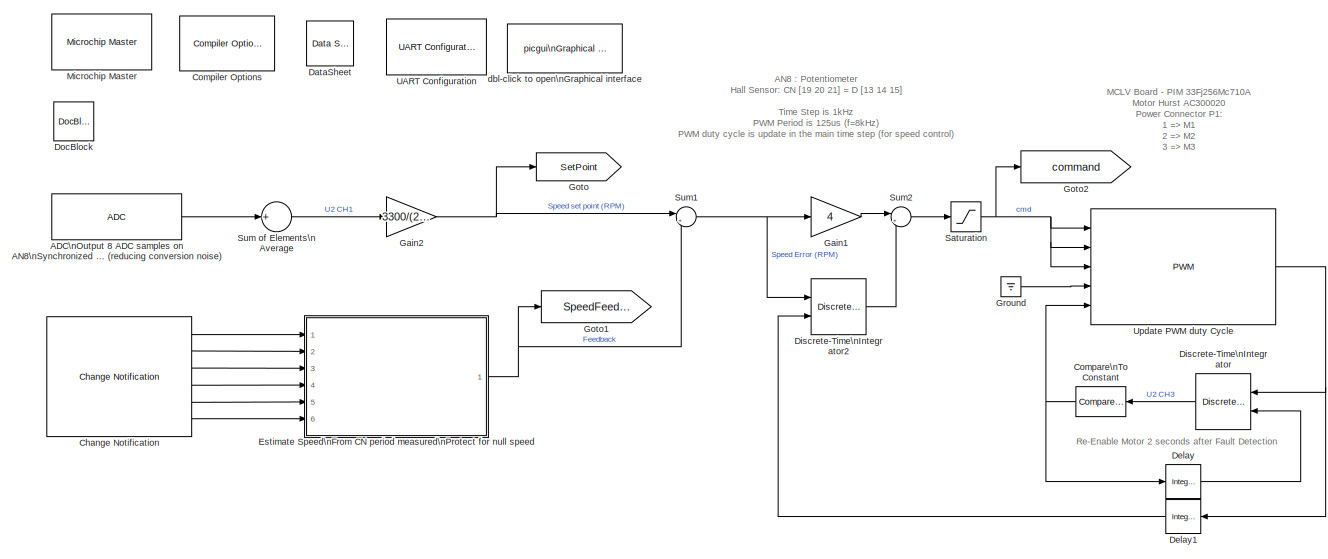
[diagram: root canvas - part 1/2, full width, top band]
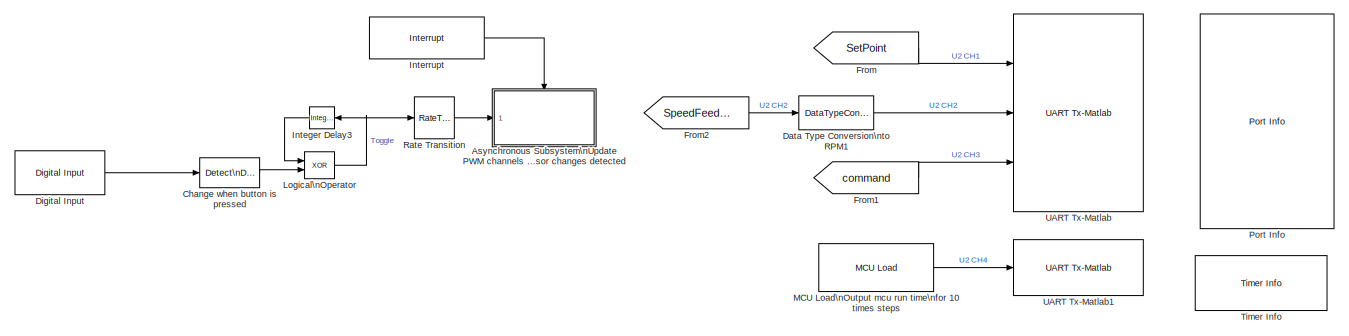
[diagram: root canvas - part 2/2, full width, bottom band]
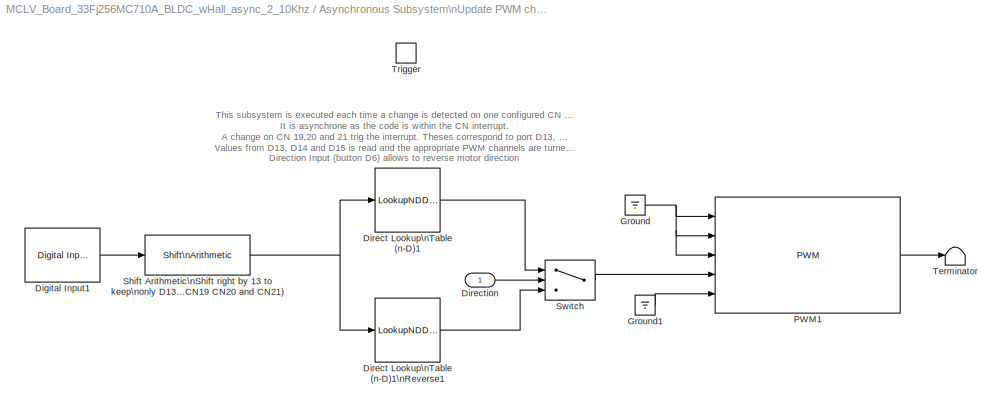
MODEL MCLV_Board_33Fj256MC710A_BLDC_wHall_async_2_10Khz
KIND model
BLOCK [Reference] ADC\nOutput 8 ADC samples on AN8\nSynchronized with PWM (reducing conversion noise)  REF=MCHP_Blockset/Analog IO/ADC
  ADC_DMA_CHANNEL = use DMA Channel 1
  ADC_REF = 1
  ADC_TIMING = [7.5599999999999994e-005]
  ADxCSS = 8
  FORM = 0000 dddd dddd dddd ==> Unsigned integer
  Info = Total Time for Sample & Conversion : 7.56e-005s including 0s (x 8) sample time.
  MCHP_MASTERLINK = MCLV_Board_33Fj256MC710A_BLDC_wHall_async_2_10Khz/Microchip Master
  MCHP_PORT = {Analog Input 8}{AN8}15:2:B8;
  MUXA_CH0N = off
  MUXA_CH123 = Dynamic Options
  MUXA_CH123_TXT = AN0 : AN1 : AN2
  MUXB_CH0 = AN1
  MUXB_CH0N = on
  MUXB_CH123 = Dynamic Options
  MUXB_CH123_TXT = AN0 : AN1 : AN2
  Mode = 12 bits
  Ports = [0, 1]
  SID = 2
  SIMULTANEOUS = in Sequence
  SSRC_SSRCG = Dynamic Options
  SSRC_SSRCG_TXT = 6
  SampleTime = 0.001
  SequenceRepeat = 8
  SequenceTiming = are done as fast as possible ; triggered by user define source
  SourceBlock = MCHP_Blockset/Analog IO/ADC
  Trig_TimeStep = with each update of the ADC block output
  Update_BlockOutput = After all trig and conversion sequence
  nSAMPLECHANNELS = CH0 only
  nSAMPLECHANNELS_12bits = CH0 only
BLOCK [SubSystem] Asynchronous Subsystem\nUpdate PWM channels to On // Off\nbased on Hall sensor changes detected
  FunctionWithSeparateData = off
  MaskHideContents = off
  MinAlgLoopOccurrences = off
  Opaque = off
  Ports = [1, 0, 0, 1]
  PropExecContextOutsideSubsystem = off
  RTWSystemCode = Auto
  RequestExecContextInheritance = off
  SID = 56
BLOCK [Reference] Asynchronous Subsystem\nUpdate PWM channels to On // Off\nbased on Hall sensor changes detected/Digital Input1  REF=MCHP_Blockset/Digital IO/Digital Input
  MCHP_MASTERLINK = MCLV_Board_33Fj256MC710A_BLDC_wHall_async_2_10Khz/Microchip Master
  MCHP_PORT = {Digital In}{DIN}2:0:D13;{Digital In}{DIN}2:0:D14;{Digital In}{DIN}2:0:D15;
  ORDERING = None
  PACK = on
  PIN = [13 14 15]
  PORT = Dynamic Options
  PORT_TXT = D   [ 0 : 15 ]
  Ports = [0, 1]
  SID = 65
  SIMULTANEOUS = off
  SampleTime = -1
  SourceBlock = MCHP_Blockset/Digital IO/Digital Input
  SourceType = Input driver for Digital Input Pins
BLOCK [LookupNDDirect] Asynchronous Subsystem\nUpdate PWM channels to On // Off\nbased on Hall sensor changes detected/Direct Lookup\nTable (n-D)1
  NumberOfTableDimensions = 1
  Ports = [1, 1]
  SID = 6
  Table = [0 8193 516 8196 2064 2049 528 0]
  TableDataTypeStr = uint16
BLOCK [LookupNDDirect] Asynchronous Subsystem\nUpdate PWM channels to On // Off\nbased on Hall sensor changes detected/Direct Lookup\nTable (n-D)1\nReverse1
  NumberOfTableDimensions = 1
  Ports = [1, 1]
  SID = 7
  Table = [0 528 2049 2064 8196 516 8193 0]
  TableDataTypeStr = uint16
BLOCK [Inport] Asynchronous Subsystem\nUpdate PWM channels to On // Off\nbased on Hall sensor changes detected/Direction
  IconDisplay = Port number
  SID = 68
BLOCK [Ground] Asynchronous Subsystem\nUpdate PWM channels to On // Off\nbased on Hall sensor changes detected/Ground
  SID = 86
BLOCK [Ground] Asynchronous Subsystem\nUpdate PWM channels to On // Off\nbased on Hall sensor changes detected/Ground1
  SID = 87
BLOCK [Reference] Asynchronous Subsystem\nUpdate PWM channels to On // Off\nbased on Hall sensor changes detected/PWM1  REF=MCHP_Blockset/PWM IO/PWM
  CAM = off
  Channel = [1  2 3]
  ChannelHigh = [1 2 4]
  ChannelHighLowChk = off
  DTPWM1a = Prescaler A
  DTPWM1i = Prescaler A
  DTPWM2a = Prescaler A
  DTPWM2i = Prescaler A
  DTPWM3a = Prescaler A
  DTPWM3i = Prescaler A
  DTPWM4a = Prescaler A
  DTPWM4i = Prescaler A
  DeadTimePrescaleA = 2e-6
  DeadTimePrescaleB = 0
  FAULTA_FLATM = Use Re-Enable block input after Fault is detected
  FAULTB_FLBTM = Use Re-Enable block input after Fault is detected
  FaultA_Output = on
  FaultA_PWM1_State = H/L ==> 00
  FaultA_PWM2_State = H/L ==> 00
  FaultA_PWM3_State = H/L ==> 00
  FaultA_PWM4_State = No Changes (PWM)
  FaultB_Output = off
  FaultB_PWM1_State = No Changes (PWM)
  FaultB_PWM2_State = No Changes (PWM)
  FaultB_PWM3_State = No Changes (PWM)
  FaultB_PWM4_State = No Changes (PWM)
  IUE = off
  Info = PWM1max = 9997  ;   % ==>  13.2873 bits
  InitialPeriod = .001/8
  InputPeriodeChk = off
  MCHP_MASTERLINK = MCLV_Board_33Fj256MC710A_BLDC_wHall_async_2_10Khz/Microchip Master
  OVDCONChk = on
  PIN_FaultA = Dynamic Options
  PIN_FaultA_TXT = <empty>
  PIN_FaultB = Dynamic Options
  PIN_FaultB_TXT = <empty>
  PWM_REF = Duplicate ports for PWM 1
  Ports = [5, 1]
  PxSECMP = 0
  PxSECMPBlkInChk = off
  SID = 71
  SampleTime = -1
  SourceBlock = MCHP_Blockset/PWM IO/PWM
  SourceType = PWM Motor Output
BLOCK [Reference] Asynchronous Subsystem\nUpdate PWM channels to On // Off\nbased on Hall sensor changes detected/Shift Arithmetic\nShift right by 13 to keep\nonly D13 D14 D15\n(CN19 CN20 and CN21)  REF=simulink/Logic and Bit\nOperations/Shift\nArithmetic
  FunctionWithSeparateData = off
  Ports = [1, 1]
  RTWMemSecDataConstants = Inherit from model
  RTWMemSecDataInternal = Inherit from model
  RTWMemSecDataParameters = Inherit from model
  RTWMemSecFuncExecute = Inherit from model
  RTWMemSecFuncInitTerm = Inherit from model
  SID = 199
  ShowPortLabels = FromPortIcon
  SourceBlock = simulink/Logic and Bit\nOperations/Shift\nArithmetic
  SourceType = Shift Arithmetic
  SystemSampleTime = -1
  nBinPtShiftRight = 0
  nBitShiftRight = 13
BLOCK [Switch] Asynchronous Subsystem\nUpdate PWM channels to On // Off\nbased on Hall sensor changes detected/Switch
  Criteria = u2 ~= 0
  InputSameDT = off
  SID = 11
  SaturateOnIntegerOverflow = off
BLOCK [Terminator] Asynchronous Subsystem\nUpdate PWM channels to On // Off\nbased on Hall sensor changes detected/Terminator
  SID = 88
BLOCK [TriggerPort] Asynchronous Subsystem\nUpdate PWM channels to On // Off\nbased on Hall sensor changes detected/Trigger
  PortDimensions = 1
  Ports = []
  SID = 63
  StatesWhenEnabling = held
  TriggerType = function-call
BLOCK [Reference] Change Notification  REF=MCHP_Blockset/Pulse Input//Output/Change Notification
  CNxmax = [39062  39062  39062]
  ChangeDetected = [1     1     1]
  Channel = [19    20    21]
  Channel_EP = [  D13  D14  D15 ]
  Channel_OLD = [19  20  21]
  Channel_UP_Down_Periode = [4     4     4]
  IntPriority = 6
  MCHP_MASTERLINK = MCLV_Board_33Fj256MC710A_BLDC_wHall_async_2_10Khz/Microchip Master
  MCHP_PORT = {Change Notification 19}{CN19}9:0:D13;{Change Notification 20}{CN20}9:0:D14;{Change Notification 21}{CN21}9:0:D15;
  MCHP_TIMER_REQUEST = {Change Notification 19}{CN19}7:1:1:0:[]:30000000;{Change Notification 20}{CN20}7:1:1:0:[]:30000000;{Change Notification 21}{CN21}7:1:1:0:[]:30000000;
  MCHP_TIMER_RESULT = [2 117186.50000000007 ;2 117186.50000000007 ;2 117186.50000000007 ]
  MCHP_USER_INTERRUPTS = {CNIE}{CN}{Change Notification}{6};
  MaxChannel = [0.25   0.25   0.25]
  MaxChannelValue = 2.^[ 15.253  15.253  15.253]  =>  [39062  39062  39062]
  OutputPortValue = [0     0     0]
  Ports = [0, 6]
  SID = 47
  SafeMarge = [200   200   200]
  SampleTime = .001
  SourceBlock = MCHP_Blockset/Pulse Input//Output/Change Notification
  SourceType = Input driver for Change Notification Peripheral
  Status = OK
  Timer = [2  2  2]
BLOCK [Reference] Change when button is pressed  REF=simulink/Logic and Bit\nOperations/Detect\nDecrease
  FunctionWithSeparateData = off
  Ports = [1, 1]
  RTWMemSecDataConstants = Inherit from model
  RTWMemSecDataInternal = Inherit from model
  RTWMemSecDataParameters = Inherit from model
  RTWMemSecFuncExecute = Inherit from model
  RTWMemSecFuncInitTerm = Inherit from model
  SID = 69
  ShowPortLabels = FromPortIcon
  SourceBlock = simulink/Logic and Bit\nOperations/Detect\nDecrease
  SourceType = Detect Decrease
  SystemSampleTime = -1
  vinit = 0.0
BLOCK [Reference] Compare\nTo Constant  REF=simulink/Logic and Bit\nOperations/Compare\nTo Constant
  FunctionWithSeparateData = off
  LogicOutDataTypeMode = boolean
  Ports = [1, 1]
  RTWMemSecDataConstants = Inherit from model
  RTWMemSecDataInternal = Inherit from model
  RTWMemSecDataParameters = Inherit from model
  RTWMemSecFuncExecute = Inherit from model
  RTWMemSecFuncInitTerm = Inherit from model
  SID = 27
  ShowPortLabels = FromPortIcon
  SourceBlock = simulink/Logic and Bit\nOperations/Compare\nTo Constant
  SourceType = Compare To Constant
  SystemSampleTime = -1
  ZeroCross = on
  const = 2000
  relop = >=
BLOCK [Reference] Compiler Options  REF=MCHP_Blockset/System Configuration/Compiler Options
  AssemblyListing = off
  COMP_LIST = Dynamic Options
  COMP_LIST_TXT = xc16 - v1.26
  DEBUG_INFO = on
  HEAP_SIZE = 0
  LATEST_CMPLR = on
  MCHP_MASTERLINK = MCLV_Board_33Fj256MC710A_BLDC_wHall_async_2_10Khz/Microchip Master
  MCHP_MULTITHREAD_COMPILATION = on
  MCODE = is less than 32768 (faster)
  MCONST = in data memory
  MDATA = Use only memory below address 8192 (faster)
  MPLAB_LINKLIB = default
  MPLAB_LINKLIB1 = default
  MSCALAR = Use only memory below address 8192 (faster)
  OMF = elf
  OMIT_FRAME_POINTER = off
  OPTIMIZATION_LEVEL = 3
  PROCEDURAL_ABSTRACTION = off
  Ports = []
  Priority = 1
  ProduceHexOutput = on
  SID = 67
  SourceBlock = MCHP_Blockset/System Configuration/Compiler Options
  UNROLL_LOOPS = off
  USE_64BIT_DOUBLE = off
BLOCK [DataTypeConversion] Data Type Conversion\nto RPM1
  OutDataTypeMode = uint16
  OutDataTypeStr = uint16
  RndMeth = Floor
  SID = 195
BLOCK [Reference] DataSheet  REF=MCHP_Blockset/System Info/Data Sheet
  AttributesFormatString = %<cpy_MCHP_Id>
  DOC_FileLastCheckTime = [2012              9              2             21             45         49.233]
  DOC_FilePath = <userpath><path>
  DOC_MCHP_Id = 33FJ256MC710A
  DOC_Type = datasheet
  MCHP_MASTERLINK = MCLV_Board_33Fj256MC710A_BLDC_wHall_async_2_10Khz/Microchip Master
  Ports = []
  SID = 35
  SourceBlock = MCHP_Blockset/System Info/Data Sheet
  cpy_MCHP_Id = 33FJ256MC710A
BLOCK [Reference] Delay  REF=simulink/Discrete/Integer Delay
  NumDelays = 1
  Ports = [1, 1]
  SID = 200
  SourceBlock = simulink/Discrete/Integer Delay
  SourceType = Integer Delay
  samptime = -1
  vinit = 0
BLOCK [Reference] Delay1  REF=simulink/Discrete/Integer Delay
  NumDelays = 1
  Ports = [1, 1]
  SID = 201
  SourceBlock = simulink/Discrete/Integer Delay
  SourceType = Integer Delay
  samptime = -1
  vinit = 0
BLOCK [Reference] Digital Input  REF=MCHP_Blockset/Digital IO/Digital Input
  MCHP_MASTERLINK = MCLV_Board_33Fj256MC710A_BLDC_wHall_async_2_10Khz/Microchip Master
  MCHP_PORT = {Digital In}{DIN}2:0:D6;
  ORDERING = None
  PACK = off
  PIN = 6
  PORT = Dynamic Options
  PORT_TXT = D   [ 0 : 15 ]
  Ports = [0, 1]
  SID = 34
  SIMULTANEOUS = off
  SampleTime = .01
  SourceBlock = MCHP_Blockset/Digital IO/Digital Input
  SourceType = Input driver for Digital Input Pins
BLOCK [DiscreteIntegrator] Discrete-Time\nIntegrator
  ExternalReset = level
  ICPrevOutput = DiscIntNeverNeededParam
  ICPrevScaledInput = DiscIntNeverNeededParam
  InitialConditionSource = internal
  IntegratorMethod = Accumulation: Forward Euler
  LowerSaturationLimit = 0
  OutDataTypeMode = uint16
  OutDataTypeStr = uint16
  Ports = [2, 1]
  SID = 29
  SampleTime = -1
  SaturateOnIntegerOverflow = on
  UpperSaturationLimit = 0
  gainval = 1
BLOCK [DiscreteIntegrator] Discrete-Time\nIntegrator2
  ExternalReset = level
  ICPrevOutput = DiscIntNeverNeededParam
  ICPrevScaledInput = DiscIntNeverNeededParam
  InitialConditionSource = internal
  IntegratorMethod = Integration: Forward Euler
  LimitOutput = on
  LowerSaturationLimit = 0
  OutDataType = fixdt(1,16,1)
  OutDataTypeMode = Specify via dialog
  OutDataTypeStr = fixdt(1,16,1)
  OutMax = [PWMmax]
  OutMin = [-PWMmax]
  Ports = [2, 1]
  SID = 97
  SampleTime = -1
  SaturateOnIntegerOverflow = on
  UpperSaturationLimit = PWM1max
  gainval = 16
BLOCK [Reference] DocBlock  REF=simulink/Model-Wide\nUtilities/DocBlock
  DocumentType = Text
  FunctionWithSeparateData = off
  Ports = []
  RTWMemSecDataConstants = Inherit from model
  RTWMemSecDataInternal = Inherit from model
  RTWMemSecDataParameters = Inherit from model
  RTWMemSecFuncExecute = Inherit from model
  RTWMemSecFuncInitTerm = Inherit from model
  SID = 169
  ShowPortLabels = FromPortIcon
  SourceBlock = simulink/Model-Wide\nUtilities/DocBlock
  SourceType = DocBlock
  SystemSampleTime = -1
  UserData = DataTag0
  UserDataPersistent = on
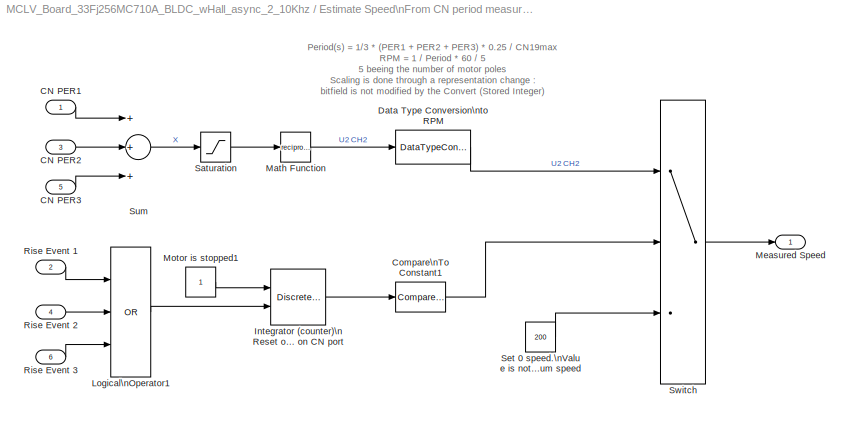
BLOCK [SubSystem] Estimate Speed\nFrom CN period measured\nProtect for null speed
  FunctionWithSeparateData = off
  MaskHideContents = off
  MinAlgLoopOccurrences = off
  Opaque = off
  Ports = [6, 1]
  PropExecContextOutsideSubsystem = off
  RTWSystemCode = Auto
  RequestExecContextInheritance = off
  SID = 153
BLOCK [Inport] Estimate Speed\nFrom CN period measured\nProtect for null speed/CN PER1
  IconDisplay = Port number
  SID = 154
BLOCK [Inport] Estimate Speed\nFrom CN period measured\nProtect for null speed/CN PER2
  IconDisplay = Port number
  Port = 3
  SID = 155
BLOCK [Inport] Estimate Speed\nFrom CN period measured\nProtect for null speed/CN PER3
  IconDisplay = Port number
  Port = 5
  SID = 156
BLOCK [Reference] Estimate Speed\nFrom CN period measured\nProtect for null speed/Compare\nTo Constant1  REF=simulink/Logic and Bit\nOperations/Compare\nTo Constant
  FunctionWithSeparateData = off
  LogicOutDataTypeMode = boolean
  Ports = [1, 1]
  RTWMemSecDataConstants = Inherit from model
  RTWMemSecDataInternal = Inherit from model
  RTWMemSecDataParameters = Inherit from model
  RTWMemSecFuncExecute = Inherit from model
  RTWMemSecFuncInitTerm = Inherit from model
  SID = 127
  ShowPortLabels = FromPortIcon
  SourceBlock = simulink/Logic and Bit\nOperations/Compare\nTo Constant
  SourceType = Compare To Constant
  SystemSampleTime = -1
  ZeroCross = on
  const = 250
  relop = <=
BLOCK [DataTypeConversion] Estimate Speed\nFrom CN period measured\nProtect for null speed/Data Type Conversion\nto RPM
  ConvertRealWorld = Stored Integer (SI)
  OutDataType = fixdt(1,16,CN19max/0.25 * 3/5 * 60 * 2^-23,0)
  OutDataTypeMode = Specify via dialog
  OutDataTypeStr = fixdt(1,16,CN19max/0.25 * 3/5 * 60 * 2^-23,0)
  RndMeth = Floor
  SID = 93
  SaturateOnIntegerOverflow = off
BLOCK [DiscreteIntegrator] Estimate Speed\nFrom CN period measured\nProtect for null speed/Integrator (counter)\nReset on each rise edge\ndetected on CN port
  ExternalReset = level
  ICPrevOutput = DiscIntNeverNeededParam
  ICPrevScaledInput = DiscIntNeverNeededParam
  InitialConditionSource = internal
  IntegratorMethod = Accumulation: Forward Euler
  LimitOutput = on
  LowerSaturationLimit = 0
  OutDataTypeMode = uint16
  OutDataTypeStr = uint16
  Ports = [2, 1]
  SID = 112
  SampleTime = -1
  SaturateOnIntegerOverflow = on
  UpperSaturationLimit = 255
  gainval = 1
BLOCK [Logic] Estimate Speed\nFrom CN period measured\nProtect for null speed/Logical\nOperator1
  AllPortsSameDT = off
  Inputs = 3
  Operator = OR
  OutDataTypeMode = boolean
  OutDataTypeStr = boolean
  Ports = [3, 1]
  SID = 111
BLOCK [Math] Estimate Speed\nFrom CN period measured\nProtect for null speed/Math Function
  Operator = reciprocal
  OutDataType = fixdt(0,16,23)
  OutDataTypeMode = Specify via dialog
  OutDataTypeStr = fixdt(0,16,23)
  OutputSignalType = real
  Ports = [1, 1]
  SID = 91
BLOCK [Outport] Estimate Speed\nFrom CN period measured\nProtect for null speed/Measured Speed
  IconDisplay = Port number
  SID = 157
BLOCK [Constant] Estimate Speed\nFrom CN period measured\nProtect for null speed/Motor is stopped1
  OutDataTypeMode = Inherit via back propagation
  OutDataTypeStr = Inherit: Inherit via back propagation
  SID = 113
BLOCK [Inport] Estimate Speed\nFrom CN period measured\nProtect for null speed/Rise Event 1
  IconDisplay = Port number
  Port = 2
  SID = 158
BLOCK [Inport] Estimate Speed\nFrom CN period measured\nProtect for null speed/Rise Event 2
  IconDisplay = Port number
  Port = 4
  SID = 159
BLOCK [Inport] Estimate Speed\nFrom CN period measured\nProtect for null speed/Rise Event 3
  IconDisplay = Port number
  Port = 6
  SID = 160
BLOCK [Saturate] Estimate Speed\nFrom CN period measured\nProtect for null speed/Saturation
  LowerLimit = 1
  OutDataTypeMode = uint16
  OutDataTypeStr = uint16
  Ports = [1, 1]
  SID = 101
  UpperLimit = 65535
BLOCK [Constant] Estimate Speed\nFrom CN period measured\nProtect for null speed/Set 0 speed.\nValue is not 0, thus\nIf set point (from ADC) is lower than this low value,\nThe controller will drive PWM to 0.\nThis value set the minimum speed
  OutDataTypeMode = Inherit via back propagation
  OutDataTypeStr = Inherit: Inherit via back propagation
  SID = 110
  Value = 200
BLOCK [Sum] Estimate Speed\nFrom CN period measured\nProtect for null speed/Sum
  AccumDataTypeStr = Inherit: Same as first input
  InputSameDT = off
  Inputs = +++
  Ports = [3, 1]
  RndMeth = Simplest
  SID = 64
BLOCK [Switch] Estimate Speed\nFrom CN period measured\nProtect for null speed/Switch
  Criteria = u2 ~= 0
  InputSameDT = off
  SID = 109
  SaturateOnIntegerOverflow = off
BLOCK [From] From
  GotoTag = SetPoint
  SID = 161
BLOCK [From] From1
  GotoTag = command
  SID = 165
BLOCK [From] From2
  GotoTag = SpeedFeedback
  SID = 166
BLOCK [Gain] Gain1
  Gain = 4
  OutDataTypeMode = int16
  OutDataTypeStr = int16
  ParamDataTypeStr = fixdt(1,16,10)
  ParameterDataType = fixdt(1,16,10)
  ParameterDataTypeMode = Specify via dialog
  ParameterScalingMode = Best Precision: Matrix-wise
  RndMeth = Round
  SID = 98
BLOCK [Gain] Gain2
  Gain = 3300/(2^12*8)
  OutDataTypeMode = uint16
  OutDataTypeStr = uint16
  ParamDataTypeStr = Inherit: Inherit from 'Gain'
  ParameterDataTypeMode = Inherit from 'Gain'
  RndMeth = Round
  SID = 124
BLOCK [Goto] Goto
  GotoTag = SetPoint
  SID = 162
  TagVisibility = local
BLOCK [Goto] Goto1
  GotoTag = SpeedFeedback
  SID = 163
  TagVisibility = local
BLOCK [Goto] Goto2
  GotoTag = command
  SID = 164
  TagVisibility = local
BLOCK [Ground] Ground
  SID = 85
BLOCK [Reference] Integer Delay3  REF=simulink/Discrete/Integer Delay
  NumDelays = 1
  Ports = [1, 1]
  SID = 202
  SourceBlock = simulink/Discrete/Integer Delay
  SourceType = Integer Delay
  samptime = -1
  vinit = 1
BLOCK [Reference] Interrupt  REF=MCHP_Blockset/System Functions/Interrupt
  IntPriority = 6
  Interruption = Dynamic Options
  Interruption_TXT = Change Notification
  MCHP_MASTERLINK = MCLV_Board_33Fj256MC710A_BLDC_wHall_async_2_10Khz/Microchip Master
  Ports = [0, 1]
  SID = 62
  SourceBlock = MCHP_Blockset/System Functions/Interrupt
  SourceType = Interruption (Call Simulink Subfunction)
  StartupExecute = off
  Status = OK
BLOCK [Logic] Logical\nOperator
  AllPortsSameDT = off
  Operator = XOR
  OutDataTypeMode = boolean
  OutDataTypeStr = boolean
  Ports = [2, 1]
  SID = 16
BLOCK [Reference] MCU Load\nOutput mcu run time\nfor 10 times steps  REF=MCHP_Blockset/Profiling/MCU Load
  Info = Timer 1:  Resol: 200(ns)  -  Max: 13.1072(ms)
  MCHP_COMPILED_INFO = CompiledSampleTime= [0.01   0 ];CompiledInportDataTypes=[ ];CompiledInportDataWidth=[];
  MCHP_MASTERLINK = MCLV_Board_33Fj256MC710A_BLDC_wHall_async_2_10Khz/Microchip Master
  MCHP_PORT = {MCU Load Pin}{MCU_Load}0:1:F13;
  MCHP_TIMER_REQUEST = {MCU_Load}{MCU_Load}21:5:0:0:[]:524288;
  MCHP_TIMER_RESULT = [1 65535 ]
  MCULoadMeasure = on
  MCULoadPin = Dynamic Options
  MCULoadPin_TXT = F13 / Pin[39]
  Ports = [0, 1]
  SID = 151
  SampleTime = .01
  SourceBlock = MCHP_Blockset/Profiling/MCU Load
  SourceType = MCU Load (Profile execution time)
  TIMER_Resolution = Dynamic Options
  TIMER_Resolution_TXT = Resol: 0.2(us)  -  Max: 13.1(ms)
BLOCK [Reference] Microchip Master  REF=MCHP_Blockset/System Configuration/Microchip Master
  ACTIV_PLL = on
  ACTIV_PLL_spd = on
  AIVTDIS = Disable Alternate Vector Table
  ALTADREF = AVREF+/AVREF- are mapped to RA9/RA10
  ALTCMPI = C1INC is on RB13; C2INC is on RB9 and C3INC is on RA0
  ALTCVREF = CVREF+/CVREF- are mapped to RA9/RA10
  ALTI2C = I2C mapped to SDA1/SCL1 pins
  ALTI2C1 = I2C1 mapped to SDA1/SCL1 pins
  ALTI2C2 = I2C2 mapped to SDA2/SCL2 pins
  ALTPMP = EPMP pins are in default location mode
  ALTQIO = QEA1; QEB1; INDX1 are selected as inputs to QEI1
  ALTRB6 = Append the RP6/ASCL1/PMPD6 functions of RB6 to RA1 pin functions
  ALTSS1 = SS1A is selected as the I/O pin for SPI1
  ALTVREF = Voltage reference input; ADC =RA9/RA10 Comparator =RA9;RA10
  APL = Aux Flash Code protect is disabled
  APLK = Aux Flash Write Protection or Code Protection is Enabled
  ATMOD8 = Not used
  AWRP = Aux Flash may be written
  BACKBUG = Not used
  BKBUG = Device resets into Operational mode
  BODENV = 2.7V
  BOOTISA = Boot code and Exception code is MIPS32
  BOREN = Disable
  BOREN0 = Enabled
  BOREN1 = BOR Enabled [When BOREN=1]
  BORV = Brown-out Reset set at 2.0V
  BSEN = No Boot Segment
  BSLIM = Not used
  BSS = No boot program Flash segment
  BSS2 = No Boot Segment
  BTMODE = Device is in Single Boot (legacy) mode
  BTSWP = Not used
  BUSYFLAG = Dynamic Options
  BUSYFLAG_TXT = None
  BWP = Protection Disabled
  BWRP = Boot Segment may be written
  CMPPOL0 = Hysteresis is applied to falling edge
  CMPPOL1 = Hysteresis is applied to falling edge
  COE = Reset Into Operational Mode
  CP = Protection Disabled
  CSEQ = Not used
  CSS = No Protection (other than CWRP)
  CTXT1 = Not Assigned
  CTXT2 = Not Assigned
  CWRP = Configuration Segment may be written
  DBCC = Not used
  DBGPER = Allow CPU access to all permission regions
  DEBUG = Debugger is disabled
  DFMCY = Not used
  DISUVREG = Regulator is disabled
  DMTCNT = 2^31 (2147483648)
  DMTEN = Dead Man Timer is Enabled and cannot be disabled by software
  DMTINTV = Window/Interval value is 127/128 counter value
  DMTIVT = Not used
  DSBOREN = Deep Sleep BOR enabled in Deep Sleep
  DSLPBOR = Deep Sleep BOR enabled in Deep Sleep
  DSSWEN = Deep Sleep is controlled by the register bit DSEN
  DSWDTEN = DSWDT enabled
  DSWDTOSC = DSWDT uses Low Power RC Oscillator (LPRC)
  DSWDTPS = 1:2;147;483;648 (25.7 Days)
  EBS = No Boot EEPROM
  EJTAGBEN = Normal EJTAG functionality
  ESS = No Segment Data EEPROM
  EXTDDRSIZE = External DDR2 Size is 128 MB
  FCANIO = Default CAN I/O
  FCKSM = Clock switching is enabled; Fail-Safe Clock Monitor is disabled
  FCKSMEN = Sw Disabled; Mon Disabled
  FDMTEN = Deadman Timer is disabled
  FECCCON = ECC and Dynamic ECC are disabled (ECCCON bits are writable)
  FETHIO = Default Ethernet I/O
  FMIIEN = MII Enabled
  FNOSC = Primary oscillator (XT; HS; EC)
  FOS = Primary Oscillator
  FOSFPR = HS3 w/PLL 16x
  FPBDIV = Pb_Clk is Sys_Clk/8
  FPLLICLK = FRC is input to the System PLL
  FPLLIDIV = 12x Divider
  FPLLMUL = 24x Multiplier
  FPLLMULT = PLL Multiply by 128
  FPLLODIV = PLL Divide by 256
  FPLLRNG = 34-68 MHz Input
  FPR = ECIO w/ PLL 16x
  FPWRT = 128ms
  FRANGE = High Range
  FSLEEP = Flash is powered down when the device is in Sleep mode
  FSOSCEN = Enabled
  FSRSSEL = SRS Priority 7
  FUSBIDIO = Controlled by the USB Module
  FVBUSONIO = Controlled by USB Module
  FWDTEN = Disable
  FWDTWINSZ = Window size is 25%
  FWPSA = 1:512
  FWPSA0 = 1:128
  FWPSB = 1:16
  GCP = General Segment Code protect is disabled
  GSS = User program memory is not code-protected
  GSS0 = No protection
  GSSK = General Segment Write Protection or Code Protection is Enabled
  GWRP = General Segment may be written
  HPOL = PWM module high side output pins have active-high output polarity
  HYST0 = 45 mV Hysteresis
  HYST1 = 45 mV Hysteresis
  I2C1SEL = Use Default SCL1/SDA1 Pins For I2C1
  I2C2SEL = I2C2 is multiplexed to SDA2/RA3 and SCL2/RA2
  ICESEL = Communicate on PGEC1/PGED1
  ICS = Communicate on PGEC1 and PGED1
  IESO = Start up with FRC; then switch
  IOL1WAY = Allow only one reconfiguration
  JTAGEN = Disable
  LPCFG = Disabled - regardless of RETEN
  LPOL = Active High
  LPRCSEL = High Power; High Accuracy Mode
  LVRCFG = Low Voltage regulator is not available
  MCHPVAR = MCHP.fcy.periph=40000000;MCHP.fcy.MIPS=40000000;MCHP.PowerSave=0;MCHP.TimeStepFactor=-1000;MCHP.TimeStep_Timer=-1;MCHP.NTIMERS=9;MCHP.id.name='33FJ256MC710A';MCHP.id.N=reshape([33 256 710],1,3);MCHP.id.L=reshape({ 'FJ','MC','A'},1,3);MCHP.id.Arch=3;MCHP.periph.PPS.reg_RPINRx=reshape(MCHP_Fun.Hex2num('[]'),0,0);MCHP.PPS.dsPIC.RP=reshape(MCHP_Fun.Hex2num('[]'),0,0);MCHP.PPS.dsPIC.RPI=reshape(MCHP_Fu...<+4983ch>
  MCHP_CRC = 4181521
  MCHP_PLLRegisters = [5    138  16385     -1]
  MCHP_TIMER_RESULT = [ ]
  MCLRE = Enabled
  MIPS = 40 * 1e6
  MIPS_DESIRED = 40e6
  MIPS_DESIRED_spd = 40e6
  ON = Not used
  OSCILLATOR_SELECT = Crystal / Ceramic resonator
  OSCILLATOR_SELECT_spd = Crystal / Ceramic resonator
  OSCIOFCN = OSCO/CLKO/RA3 functions as CLKO (FOSC/2)
  OSCIOFNC = OSC2 pin has digital I/O function
  PGL1WAY = Allow only one reconfiguration
  PICREF = 33FJ256MC710A
  PLL96MHZ = 96 MHz PLL Startup is enabled automatically on start-up
  PLLDIV = PLL is disabled
  PLLKEN = Clock switch to PLL source will wait until the PLL lock signal is valid.
  PLLSS = PLL is fed by the Primary oscillator
  PLL_96MHZ = Enabled
  PMDL1WAY = Allow only one reconfiguration
  POSCBOOST = Boost the kick start of the oscillator
  POSCFREQ = Primary oscillator/external clock input frequency greater than 8MHz
  POSCGAIN = 2x gain setting
  POSCMD = XT Oscillator Mode
  POSCMOD = Primary Oscillator Disabled
  POWERSAVE = off
  PWMLOCK = PWM registers may be written without key sequence
  PWMPIN = PWM module pins controlled by PWM module at device Reset
  PWP = Disable
  PWRTEN = PWRT enabled
  Ports = []
  QUARTZ = 8e6
  QUARTZ_spd = 8e6
  RBS = No Boot RAM
  RES = Not used
  RES1 = Not used
  RES2 = Not used
  RESERVED1 = Not used
  RETCFG = Retention regulator is not available
  RSS = No Secure RAM
  RSTPRI = Device will obtain reset instruction from Primary flash
  RTCBAT = RTC operation is continued through VBAT
  RTCOSC = RTCC uses Secondary Oscillator (SOSC)
  SEQNUM = Not used
  SID = 1
  SMCLR = MCLR pin generates a normal system Reset
  SOSCBOOST = Boost the kick start of the oscillator
  SOSCGAIN = 2x gain setting
  SOSCSEL = Secondary oscillator configured for high-power operation
  SOSCSRC = Analog Mode for use with crystal
  SSS = No Secure Segment
  SWRP = Secure segment may be written
  SourceBlock = MCHP_Blockset/System Configuration/Microchip Master
  TEMP = Not used
  TIMESTEP_REF = ADC
  TRCEN = Trace features in the CPU are enabled
  TSEQ = Not used
  UPLLEN = Disabled and bypassed
  UPLLFSEL = USB PLL input is 24 MHz
  UPLLIDIV = 12x Divider
  USERID = Not used
  VBTBOR = VBAT BOR enabled
  WDT = Disable
  WDTCLK = WDT uses LPRC
  WDTCMX = WDT clock source is determined by the WDTCLK Configuration bits
  WDTEN = Disable
  WDTPOST = 1:32768
  WDTPRE = 1:128
  WDTPS = 1:32768
  WDTSPGM = WDT stops during Flash programming
  WDTWIN = WDT Window is 25% of WDT period
  WINDIS = Watchdog Timer in Non-Window mode
  WPCFG = Disable
  WPDIS = Disable
  WPEND = Write Protect from WPFP to the last page of memory
  WPFP = Page 127 (0x1FC00)
  WUTSEL = Default regulator start-up time used
  WWDTEN = Non-Window mode
  nSEQNUM = Not used
BLOCK [Reference] Port Info  REF=MCHP_Blockset/System Info/Port Info
  MCHP_MASTERLINK = MCLV_Board_33Fj256MC710A_BLDC_wHall_async_2_10Khz/Microchip Master
  Ports = []
  SID = 196
  SourceBlock = MCHP_Blockset/System Info/Port Info
BLOCK [RateTransition] Rate Transition
  Deterministic = off
  Integrity = off
  SID = 17
BLOCK [Saturate] Saturation
  LowerLimit = 0
  OutDataTypeMode = uint16
  OutDataTypeStr = uint16
  Ports = [1, 1]
  SID = 99
  UpperLimit = PWM1max
BLOCK [Sum] Sum of Elements\nAverage
  AccumDataTypeStr = uint16
  InputSameDT = off
  Inputs = +
  OutDataTypeMode = uint16
  OutDataTypeStr = uint16
  Ports = [1, 1]
  SID = 123
  SaturateOnIntegerOverflow = off
BLOCK [Sum] Sum1
  AccumDataTypeStr = fixdt(1,16,2)
  IconShape = round
  InputSameDT = off
  Inputs = |+-
  OutDataType = fixdt(1,16,2)
  OutDataTypeMode = Specify via dialog
  OutDataTypeStr = fixdt(1,16,2)
  Ports = [2, 1]
  SID = 95
BLOCK [Sum] Sum2
  AccumDataTypeStr = int16
  IconShape = round
  InputSameDT = off
  Inputs = |++
  OutDataTypeMode = uint16
  OutDataTypeStr = uint16
  Ports = [2, 1]
  SID = 100
BLOCK [Reference] Timer Info  REF=MCHP_Blockset/System Info/Timer Info
  MCHP_MASTERLINK = MCLV_Board_33Fj256MC710A_BLDC_wHall_async_2_10Khz/Microchip Master
  Ports = []
  SID = 197
  SourceBlock = MCHP_Blockset/System Info/Timer Info
BLOCK [Reference] UART Configuration  REF=MCHP_Blockset/BUS UART/UART Configuration
  ALT_IO = on
  BAUD_Choice = Dynamic Options
  BAUD_Choice_IR = Dynamic Options
  BAUD_Choice_IR_InitSeq = Dynamic Options
  BAUD_Choice_IR_InitSeq_TXT = 0
  BAUD_Choice_IR_TXT = []
  BAUD_Choice_InitSeq = Dynamic Options
  BAUD_Choice_InitSeq_TXT = 110         [+0.00%]
  BAUD_Choice_TXT = 115200         [-0.22%]
  BAUD_Custom = 115200
  BAUD_Custom_InitSeq = 0
  FlowControl = None
  IRDA = off
  InitSequence = 'Hello World'
  InitSequence_chkbox = off
  MCHP_COM_ExtPil = off
  MCHP_MASTERLINK = MCLV_Board_33Fj256MC710A_BLDC_wHall_async_2_10Khz/Microchip Master
  MCHP_PORT = {UART2  Rx}{U2RX}3:0:F4;{UART2  Tx}{U2TX}3:1:F5;
  PIN_CTS = Dynamic Options
  PIN_CTS_TXT = Dynamic Options
  PIN_RTS = Dynamic Options
  PIN_RTS_TXT = Dynamic Options
  PIN_RX = Dynamic Options
  PIN_RX_TXT = Dynamic Options
  PIN_TX = Dynamic Options
  PIN_TX_TXT = Dynamic Options
  Ports = []
  RX_CIRCULAR_SIZE = 32
  RX_IMPLEMENTATION = Circular Buffer
  RX_INT_PRIORITY = 1
  RX_INT_WHEN = receive 1 character
  SID = 3
  SourceBlock = MCHP_Blockset/BUS UART/UART Configuration
  SourceType = Configuration for UART peripheral
  TX_CIRCULAR_SIZE = 32
  TX_DMA_CHANNEL = 0   (Lowest Priority)
  TX_DMA_SIZE = 32
  TX_IMPLEMENTATION = Circular Buffer
  TX_INT_PRIORITY = 5
  TX_INT_WHEN = is empty
  UART_REF = 2
BLOCK [Reference] UART Tx-Matlab  REF=MCHP_Blockset/BUS UART/UART Tx-Matlab
  AllOrNothing = off
  CHANNELS = [1  2 3]
  MCHP_COMPILED_INFO = CompiledSampleTime= [0.001   0 ];CompiledInportDataTypes=[  5   5   5 ];CompiledInportDataWidth=[1  1  1];
  MCHP_MASTERLINK = MCLV_Board_33Fj256MC710A_BLDC_wHall_async_2_10Khz/Microchip Master
  Ports = [3]
  SID = 38
  SampleTime = -1
  SourceBlock = MCHP_Blockset/BUS UART/UART Tx-Matlab
  SourceType = Higl Level UART protocol
  UART_REF = 2
BLOCK [Reference] UART Tx-Matlab1  REF=MCHP_Blockset/BUS UART/UART Tx-Matlab
  AllOrNothing = off
  CHANNELS = 4
  MCHP_COMPILED_INFO = CompiledSampleTime= [0.01   0 ];CompiledInportDataTypes=[  5 ];CompiledInportDataWidth=[1];
  MCHP_MASTERLINK = MCLV_Board_33Fj256MC710A_BLDC_wHall_async_2_10Khz/Microchip Master
  Ports = [1]
  SID = 152
  SampleTime = -1
  SourceBlock = MCHP_Blockset/BUS UART/UART Tx-Matlab
  SourceType = Higl Level UART protocol
  UART_REF = 2
BLOCK [Reference] Update PWM duty Cycle  REF=MCHP_Blockset/PWM IO/PWM
  ADC_VARTRIG = {PWM Primary Special Event Trigger;6}
  CAM = off
  Channel = [1  2 3]
  ChannelHigh = [1 2 4]
  ChannelHighLowChk = off
  DTPWM1a = Prescaler A
  DTPWM1i = Prescaler A
  DTPWM2a = Prescaler A
  DTPWM2i = Prescaler A
  DTPWM3a = Prescaler A
  DTPWM3i = Prescaler A
  DTPWM4a = Prescaler A
  DTPWM4i = Prescaler A
  DeadTimePrescaleA = 2e-6
  DeadTimePrescaleB = 0
  FAULTA_FLATM = Use Re-Enable block input after Fault is detected
  FAULTB_FLBTM = Use Re-Enable block input after Fault is detected
  FaultA_Output = on
  FaultA_PWM1_State = H/L ==> 00
  FaultA_PWM2_State = H/L ==> 00
  FaultA_PWM3_State = H/L ==> 00
  FaultA_PWM4_State = No Changes (PWM)
  FaultB_Output = off
  FaultB_PWM1_State = No Changes (PWM)
  FaultB_PWM2_State = No Changes (PWM)
  FaultB_PWM3_State = No Changes (PWM)
  FaultB_PWM4_State = No Changes (PWM)
  IUE = off
  Info = PWM1max = 9997  ;   % ==>  13.2873 bits
  InitialPeriod = .001/8
  InputPeriodeChk = off
  MCHP_MASTERLINK = MCLV_Board_33Fj256MC710A_BLDC_wHall_async_2_10Khz/Microchip Master
  MCHP_PORT = {PWM Fault A}{FLTA}5:0:E8;{PWM_L1}{PWM_L}5:1:E0;{PWM_L2}{PWM_L}5:1:E2;{PWM_L3}{PWM_L}5:1:E4;{PWM_H1}{PWM_H}5:1:E1;{PWM_H2}{PWM_H}5:1:E3;{PWM_H3}{PWM_H}5:1:E5;
  OVDCONChk = on
  PIN_FaultA = Dynamic Options
  PIN_FaultA_TXT = <empty>
  PIN_FaultB = Dynamic Options
  PIN_FaultB_TXT = <empty>
  PWM_REF = 1
  Ports = [5, 1]
  PxSECMP = 0
  PxSECMPBlkInChk = off
  SID = 5
  SampleTime = -1
  SourceBlock = MCHP_Blockset/PWM IO/PWM
  SourceType = PWM Motor Output
BLOCK [Reference] dbl-click to open\nGraphical interface  REF=MCHP_Blockset/BUS UART/picgui\nGraphical interface
  Nothing = 0
  Ports = []
  SID = 39
  SourceBlock = MCHP_Blockset/BUS UART/picgui\nGraphical interface
ANNOTATION (root): AN8 : Potentiometer\nHall Sensor: CN [19 20 21] = D [13 14 15]\n\nTime Step is 1kHz\nPWM Period is 125us (f=8kHz)\nPWM duty cycle is update in the main time step (for speed control)\nfrom the ADC (pot) and the estimated motor speed (CN)\nPWM channels are asynchrousnly update (on / off) on each Hall sensor changed detected\n\nSee forum for adapted version for MCLV-V2 based on a dSPIC 33EP256MC506\n...<+44ch>
ANNOTATION (root): MCLV Board - PIM 33Fj256Mc710A\nMotor Hurst AC300020\nPower Connector P1: \n1 => M1\n2 => M2\n3 => M3\n4 => Gnd\nHall Connector \n1 => +5V\n2 => Gnd\n3 => HC\n4 => HA\n5 => HB
ANNOTATION (root): Re-Enable Motor 2 seconds after Fault Detection
ANNOTATION Asynchronous Subsystem\nUpdate PWM channels to On // Off\nbased on Hall sensor changes detected: This subsystem is executed each time a change is detected on one configured CN channel.\nIt is asynchrone as the code is within the CN interrupt.\nA change on CN 19,20 and 21 trig the interrupt. Theses correspond to port D13, D14 and D15.\nValues from D13, D14 and D15 is read and the appropriate PWM channels are turned on/off.\n\nDirection Input (button D6) allows to reverse motor direction
ANNOTATION Estimate Speed\nFrom CN period measured\nProtect for null speed: Period(s) = 1/3 * (PER1 + PER2 + PER3) * 0.25 / CN19max\nRPM = 1 / Period * 60 / 5\n5 beeing the number of motor poles\nScaling is done through a representation change : \n bitfield is not modified by the Convert (Stored Integer)
LINE ADC\nOutput 8 ADC samples on AN8\nSynchronized with PWM (reducing conversion noise):1 -> Sum of Elements\nAverage:1
LINE Asynchronous Subsystem\nUpdate PWM channels to On // Off\nbased on Hall sensor changes detected/Digital Input1:1 -> Asynchronous Subsystem\nUpdate PWM channels to On // Off\nbased on Hall sensor changes detected/Shift Arithmetic\nShift right by 13 to keep\nonly D13 D14 D15\n(CN19 CN20 and CN21):1
LINE Asynchronous Subsystem\nUpdate PWM channels to On // Off\nbased on Hall sensor changes detected/Direct Lookup\nTable (n-D)1:1 -> Asynchronous Subsystem\nUpdate PWM channels to On // Off\nbased on Hall sensor changes detected/Switch:1
LINE Asynchronous Subsystem\nUpdate PWM channels to On // Off\nbased on Hall sensor changes detected/Direct Lookup\nTable (n-D)1\nReverse1:1 -> Asynchronous Subsystem\nUpdate PWM channels to On // Off\nbased on Hall sensor changes detected/Switch:3
LINE Asynchronous Subsystem\nUpdate PWM channels to On // Off\nbased on Hall sensor changes detected/Direction:1 -> Asynchronous Subsystem\nUpdate PWM channels to On // Off\nbased on Hall sensor changes detected/Switch:2
LINE Asynchronous Subsystem\nUpdate PWM channels to On // Off\nbased on Hall sensor changes detected/Ground1:1 -> Asynchronous Subsystem\nUpdate PWM channels to On // Off\nbased on Hall sensor changes detected/PWM1:5
NET Asynchronous Subsystem\nUpdate PWM channels to On // Off\nbased on Hall sensor changes detected/Ground:1 -> Asynchronous Subsystem\nUpdate PWM channels to On // Off\nbased on Hall sensor changes detected/PWM1:1, Asynchronous Subsystem\nUpdate PWM channels to On // Off\nbased on Hall sensor changes detected/PWM1:2, Asynchronous Subsystem\nUpdate PWM channels to On // Off\nbased on Hall sensor changes detected/PWM1:3
LINE Asynchronous Subsystem\nUpdate PWM channels to On // Off\nbased on Hall sensor changes detected/PWM1:1 -> Asynchronous Subsystem\nUpdate PWM channels to On // Off\nbased on Hall sensor changes detected/Terminator:1
NET Asynchronous Subsystem\nUpdate PWM channels to On // Off\nbased on Hall sensor changes detected/Shift Arithmetic\nShift right by 13 to keep\nonly D13 D14 D15\n(CN19 CN20 and CN21):1 -> Asynchronous Subsystem\nUpdate PWM channels to On // Off\nbased on Hall sensor changes detected/Direct Lookup\nTable (n-D)1:1, Asynchronous Subsystem\nUpdate PWM channels to On // Off\nbased on Hall sensor changes detected/Direct Lookup\nTable (n-D)1\nReverse1:1
LINE Asynchronous Subsystem\nUpdate PWM channels to On // Off\nbased on Hall sensor changes detected/Switch:1 -> Asynchronous Subsystem\nUpdate PWM channels to On // Off\nbased on Hall sensor changes detected/PWM1:4
LINE Change Notification:1 -> Estimate Speed\nFrom CN period measured\nProtect for null speed:1
LINE Change Notification:2 -> Estimate Speed\nFrom CN period measured\nProtect for null speed:2
LINE Change Notification:3 -> Estimate Speed\nFrom CN period measured\nProtect for null speed:3
LINE Change Notification:4 -> Estimate Speed\nFrom CN period measured\nProtect for null speed:4
LINE Change Notification:5 -> Estimate Speed\nFrom CN period measured\nProtect for null speed:5
LINE Change Notification:6 -> Estimate Speed\nFrom CN period measured\nProtect for null speed:6
LINE Change when button is pressed:1 -> Logical\nOperator:2
NET Compare\nTo Constant:1 -> Delay:1, Update PWM duty Cycle:5
LINE Data Type Conversion\nto RPM1:1 -> UART Tx-Matlab:2
LINE Delay1:1 -> Discrete-Time\nIntegrator2:2
LINE Delay:1 -> Discrete-Time\nIntegrator:2
LINE Digital Input:1 -> Change when button is pressed:1
LINE Discrete-Time\nIntegrator2:1 -> Sum2:2
LINE Discrete-Time\nIntegrator:1 -> Compare\nTo Constant:1
LINE Estimate Speed\nFrom CN period measured\nProtect for null speed/CN PER1:1 -> Estimate Speed\nFrom CN period measured\nProtect for null speed/Sum:1
LINE Estimate Speed\nFrom CN period measured\nProtect for null speed/CN PER2:1 -> Estimate Speed\nFrom CN period measured\nProtect for null speed/Sum:2
LINE Estimate Speed\nFrom CN period measured\nProtect for null speed/CN PER3:1 -> Estimate Speed\nFrom CN period measured\nProtect for null speed/Sum:3
LINE Estimate Speed\nFrom CN period measured\nProtect for null speed/Compare\nTo Constant1:1 -> Estimate Speed\nFrom CN period measured\nProtect for null speed/Switch:2
LINE Estimate Speed\nFrom CN period measured\nProtect for null speed/Data Type Conversion\nto RPM:1 -> Estimate Speed\nFrom CN period measured\nProtect for null speed/Switch:1
LINE Estimate Speed\nFrom CN period measured\nProtect for null speed/Integrator (counter)\nReset on each rise edge\ndetected on CN port:1 -> Estimate Speed\nFrom CN period measured\nProtect for null speed/Compare\nTo Constant1:1
LINE Estimate Speed\nFrom CN period measured\nProtect for null speed/Logical\nOperator1:1 -> Estimate Speed\nFrom CN period measured\nProtect for null speed/Integrator (counter)\nReset on each rise edge\ndetected on CN port:2
LINE Estimate Speed\nFrom CN period measured\nProtect for null speed/Math Function:1 -> Estimate Speed\nFrom CN period measured\nProtect for null speed/Data Type Conversion\nto RPM:1
LINE Estimate Speed\nFrom CN period measured\nProtect for null speed/Motor is stopped1:1 -> Estimate Speed\nFrom CN period measured\nProtect for null speed/Integrator (counter)\nReset on each rise edge\ndetected on CN port:1
LINE Estimate Speed\nFrom CN period measured\nProtect for null speed/Rise Event 1:1 -> Estimate Speed\nFrom CN period measured\nProtect for null speed/Logical\nOperator1:1
LINE Estimate Speed\nFrom CN period measured\nProtect for null speed/Rise Event 2:1 -> Estimate Speed\nFrom CN period measured\nProtect for null speed/Logical\nOperator1:2
LINE Estimate Speed\nFrom CN period measured\nProtect for null speed/Rise Event 3:1 -> Estimate Speed\nFrom CN period measured\nProtect for null speed/Logical\nOperator1:3
LINE Estimate Speed\nFrom CN period measured\nProtect for null speed/Saturation:1 -> Estimate Speed\nFrom CN period measured\nProtect for null speed/Math Function:1
LINE Estimate Speed\nFrom CN period measured\nProtect for null speed/Set 0 speed.\nValue is not 0, thus\nIf set point (from ADC) is lower than this low value,\nThe controller will drive PWM to 0.\nThis value set the minimum speed:1 -> Estimate Speed\nFrom CN period measured\nProtect for null speed/Switch:3
LINE Estimate Speed\nFrom CN period measured\nProtect for null speed/Sum:1 -> Estimate Speed\nFrom CN period measured\nProtect for null speed/Saturation:1
LINE Estimate Speed\nFrom CN period measured\nProtect for null speed/Switch:1 -> Estimate Speed\nFrom CN period measured\nProtect for null speed/Measured Speed:1
NET Estimate Speed\nFrom CN period measured\nProtect for null speed:1 -> Goto1:1, Sum1:2
LINE From1:1 -> UART Tx-Matlab:3
LINE From2:1 -> Data Type Conversion\nto RPM1:1
LINE From:1 -> UART Tx-Matlab:1
LINE Gain1:1 -> Sum2:1
NET Gain2:1 -> Goto:1, Sum1:1
LINE Ground:1 -> Update PWM duty Cycle:4
LINE Integer Delay3:1 -> Logical\nOperator:1
LINE Interrupt:1 -> Asynchronous Subsystem\nUpdate PWM channels to On // Off\nbased on Hall sensor changes detected:trigger
NET Logical\nOperator:1 -> Integer Delay3:1, Rate Transition:1
LINE MCU Load\nOutput mcu run time\nfor 10 times steps:1 -> UART Tx-Matlab1:1
LINE Rate Transition:1 -> Asynchronous Subsystem\nUpdate PWM channels to On // Off\nbased on Hall sensor changes detected:1
NET Saturation:1 -> Goto2:1, Update PWM duty Cycle:1, Update PWM duty Cycle:2, Update PWM duty Cycle:3
LINE Sum of Elements\nAverage:1 -> Gain2:1
NET Sum1:1 -> Discrete-Time\nIntegrator2:1, Gain1:1
LINE Sum2:1 -> Saturation:1
NET Update PWM duty Cycle:1 -> Delay1:1, Discrete-Time\nIntegrator:1
note: NET lines group one-source signal fan-out (src -> all destinations, sorted); 1:1 wires keep LINE
note: 1 file-system path scrubbed to <path> (not preserved elsewhere — flat text is the only slx artifact)
